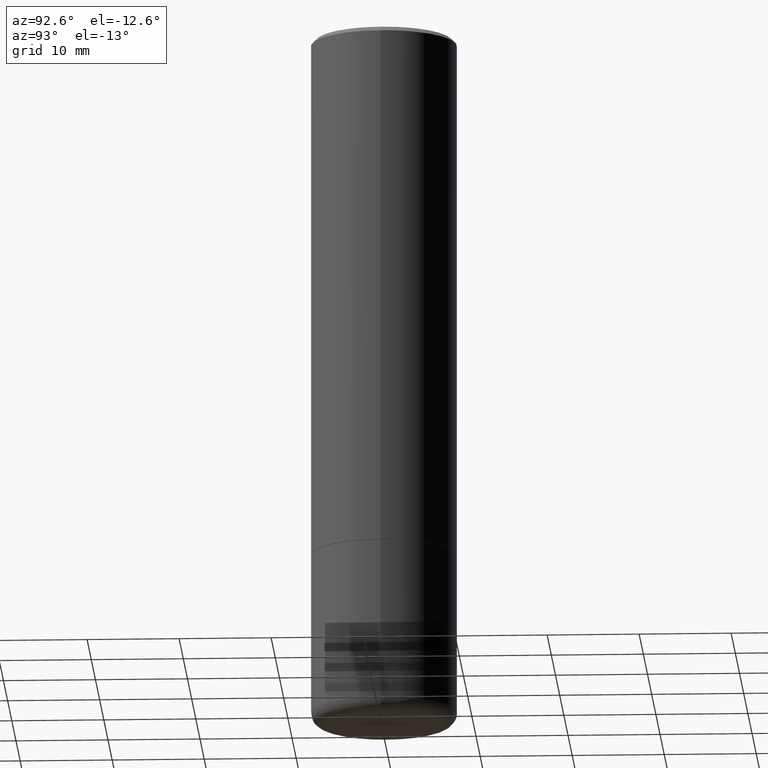
[diagram: clean part render]
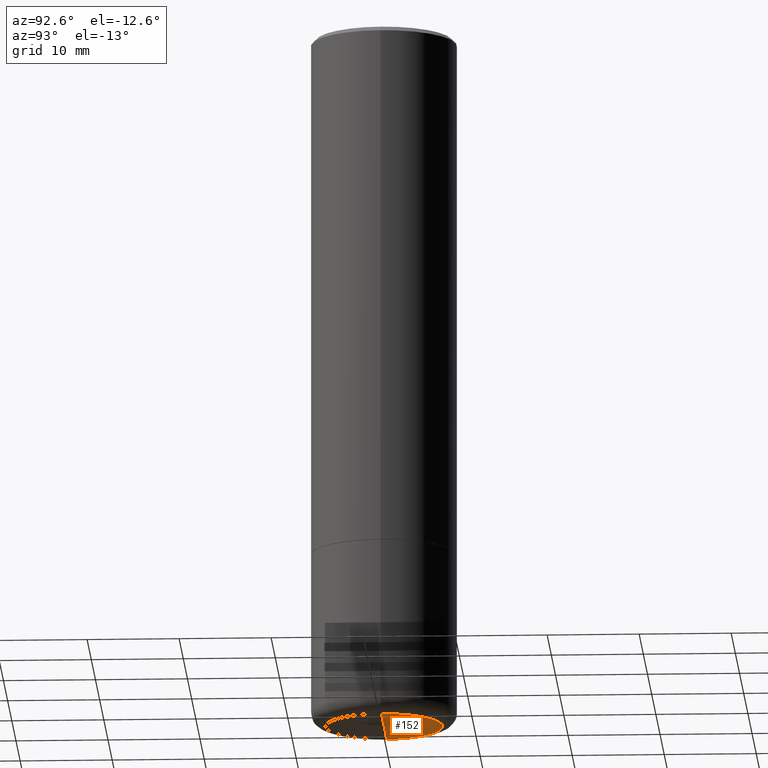
[diagram: same view with one face highlighted and labeled with its STEP entity id]
A machine part, auxiliary view. The second image highlights one B-rep face of the part: STEP entity #152.
In plain terms, the highlighted conical surface has half-angle 89 deg.
Its self-contained STEP definition (entity closure, byte-faithful):
#31 = CARTESIAN_POINT ( 'NONE',  ( 0.2514528556137646809, -1.219950392283044754E-14, -2.999990861709383783 ) ) ;
#41 = AXIS2_PLACEMENT_3D ( 'NONE', #105, #346, #281 ) ;
#55 = VECTOR ( 'NONE', #252, 39.37007874015747433 ) ;
#67 = CARTESIAN_POINT ( 'NONE',  ( 7.325329725114651997E-29, -1.045954707110368727E-14, -2.995601735788262054 ) ) ;
#77 = LINE ( 'NONE', #171, #55 ) ;
#97 = VECTOR ( 'NONE', #379, 39.37007874015747433 ) ;
#101 = CARTESIAN_POINT ( 'NONE',  ( -0.2514528556137646809, -8.718526204409729292E-15, -2.999990861709383783 ) ) ;
#105 = CARTESIAN_POINT ( 'NONE',  ( 1.036039500567319897E-27, -1.479189827891559607E-13, -42.36568047594574438 ) ) ;
#117 = EDGE_CURVE ( 'NONE', #363, #370, #77, .T. ) ;
#152 = ADVANCED_FACE ( 'NONE', ( #376 ), #202, .F. ) ;
#161 = ORIENTED_EDGE ( 'NONE', *, *, #321, .F. ) ;
#171 = CARTESIAN_POINT ( 'NONE',  ( 4.595119929091913047E-19, -1.045908755911085019E-14, -2.995601735788262054 ) ) ;
#182 = EDGE_CURVE ( 'NONE', #363, #424, #384, .T. ) ;
#202 = CONICAL_SURFACE ( 'NONE', #41, 2255.510300424650723, 1.553343034274961454 ) ;
#243 = CARTESIAN_POINT ( 'NONE',  ( -4.595119927626783027E-19, -1.045908755911085019E-14, -2.995601735788262054 ) ) ;
#252 = DIRECTION ( 'NONE',  ( 0.9998476951563914916, -6.920387862090557146E-15, -0.01745240643727538621 ) ) ;
#264 = ORIENTED_EDGE ( 'NONE', *, *, #117, .F. ) ;
#281 = DIRECTION ( 'NONE',  ( -1.000000000000000000, 6.982962677686267499E-15, 0.000000000000000000 ) ) ;
#296 = AXIS2_PLACEMENT_3D ( 'NONE', #413, #303, #304 ) ;
#298 = ORIENTED_EDGE ( 'NONE', *, *, #182, .T. ) ;
#303 = DIRECTION ( 'NONE',  ( -2.445468806185136597E-29, 3.491481338843145583E-15, 1.000000000000000000 ) ) ;
#304 = DIRECTION ( 'NONE',  ( 1.000000000000000000, -6.982962677686269077E-15, 0.000000000000000000 ) ) ;
#311 = CIRCLE ( 'NONE', #296, 0.2514528556137634041 ) ;
#321 = EDGE_CURVE ( 'NONE', #370, #424, #311, .T. ) ;
#335 = EDGE_LOOP ( 'NONE', ( #264, #298, #161 ) ) ;
#346 = DIRECTION ( 'NONE',  ( 2.445468806185136597E-29, -3.491481338843145583E-15, -1.000000000000000000 ) ) ;
#363 = VERTEX_POINT ( 'NONE', #67 ) ;
#370 = VERTEX_POINT ( 'NONE', #31 ) ;
#376 = FACE_OUTER_BOUND ( 'NONE', #335, .T. ) ;
#379 = DIRECTION ( 'NONE',  ( -0.9998476951563914916, 6.920964387254065466E-15, -0.01745240643727538621 ) ) ;
#384 = LINE ( 'NONE', #243, #97 ) ;
#413 = CARTESIAN_POINT ( 'NONE',  ( 7.336384071150766432E-29, -1.047441211035828263E-14, -2.999990861709383783 ) ) ;
#424 = VERTEX_POINT ( 'NONE', #101 ) ;